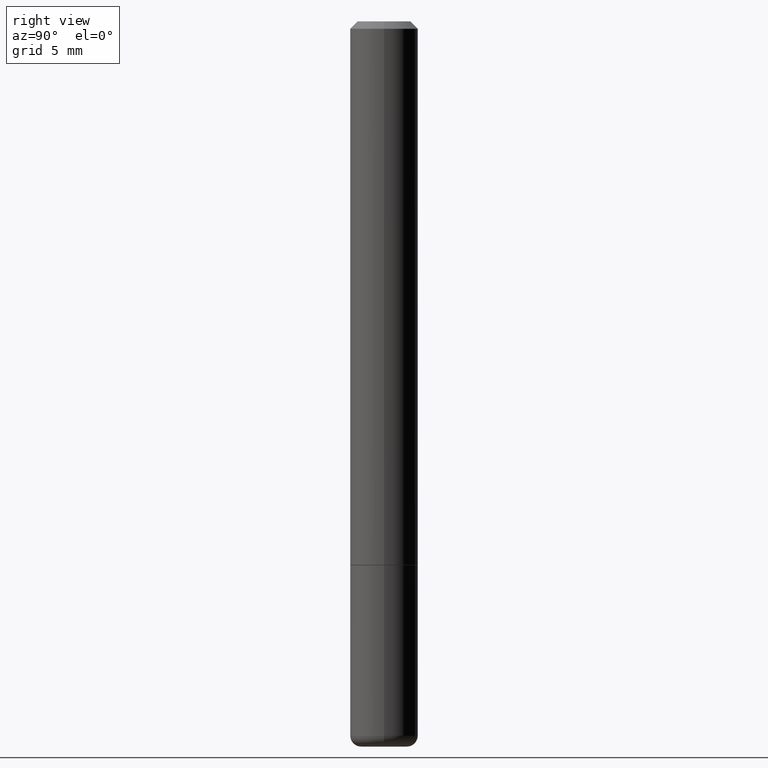
[diagram: clean part render]
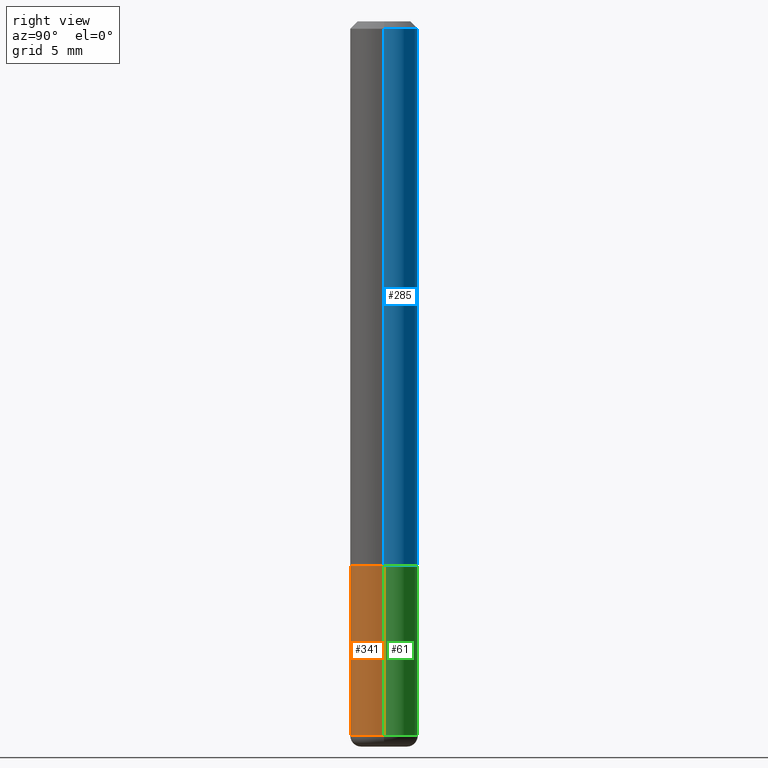
[diagram: same view with three faces highlighted in distinct colors, each labeled with its STEP entity id]
A machine part, right view with three faces highlighted in distinct colors.
Their STEP definitions:

[orange] entity #341 — the highlighted cylindrical surface (edge-blend (fillet) strip) has radius 2.3813 mm, axis along (-0, 0, 1).
#21 = DIRECTION ( 'NONE',  ( 1.000000000000000000, -6.982962677686261189E-15, 0.000000000000000000 ) ) ;
#23 = ORIENTED_EDGE ( 'NONE', *, *, #331, .F. ) ;
#44 = CARTESIAN_POINT ( 'NONE',  ( -0.09375000000000001388, 6.661338147750940229E-16, -4.611501647113973995E-30 ) ) ;
#45 = EDGE_CURVE ( 'NONE', #196, #249, #100, .T. ) ;
#65 = DIRECTION ( 'NONE',  ( -2.445468806185136597E-29, 3.491481338843145583E-15, 1.000000000000000000 ) ) ;
#67 = DIRECTION ( 'NONE',  ( -2.445468806185136597E-29, 3.491481338843145583E-15, 1.000000000000000000 ) ) ;
#69 = EDGE_CURVE ( 'NONE', #338, #249, #292, .T. ) ;
#71 = CIRCLE ( 'NONE', #112, 0.09375000000000001388 ) ;
#100 = CIRCLE ( 'NONE', #203, 0.09375000000000001388 ) ;
#112 = AXIS2_PLACEMENT_3D ( 'NONE', #187, #303, #21 ) ;
#133 = VECTOR ( 'NONE', #176, 39.37007874015748143 ) ;
#152 = CARTESIAN_POINT ( 'NONE',  ( -0.09374999999999991673, -6.212084422745903871E-15, -1.969999999999999973 ) ) ;
#153 = CARTESIAN_POINT ( 'NONE',  ( -0.09375000000000001388, -5.391586308117763273E-15, -1.499999999999999778 ) ) ;
#165 = ORIENTED_EDGE ( 'NONE', *, *, #45, .F. ) ;
#176 = DIRECTION ( 'NONE',  ( -2.445468806185136877E-29, 3.491481338843145188E-15, 1.000000000000000000 ) ) ;
#187 = CARTESIAN_POINT ( 'NONE',  ( 4.817573548184719118E-29, -6.878218237520997007E-15, -1.969999999999999973 ) ) ;
#196 = VERTEX_POINT ( 'NONE', #153 ) ;
#197 = DIRECTION ( 'NONE',  ( 1.000000000000000000, -6.982962677686261189E-15, 0.000000000000000000 ) ) ;
#203 = AXIS2_PLACEMENT_3D ( 'NONE', #352, #65, #197 ) ;
#226 = EDGE_LOOP ( 'NONE', ( #23, #350, #371, #165 ) ) ;
#234 = CARTESIAN_POINT ( 'NONE',  ( 0.000000000000000000, 0.000000000000000000, 0.000000000000000000 ) ) ;
#239 = CARTESIAN_POINT ( 'NONE',  ( 0.09375000000000001388, -5.891874759297804892E-15, -1.499999999999999778 ) ) ;
#249 = VERTEX_POINT ( 'NONE', #239 ) ;
#255 = VERTEX_POINT ( 'NONE', #152 ) ;
#264 = FACE_OUTER_BOUND ( 'NONE', #226, .T. ) ;
#269 = CARTESIAN_POINT ( 'NONE',  ( 0.09375000000000001388, -6.546527510330875041E-16, 4.571415727308690506E-30 ) ) ;
#270 = VECTOR ( 'NONE', #397, 39.37007874015748143 ) ;
#271 = AXIS2_PLACEMENT_3D ( 'NONE', #234, #67, #320 ) ;
#291 = CARTESIAN_POINT ( 'NONE',  ( 0.09374999999999991673, -7.532870988554083722E-15, -1.969999999999999973 ) ) ;
#292 = LINE ( 'NONE', #269, #270 ) ;
#294 = EDGE_CURVE ( 'NONE', #255, #338, #71, .T. ) ;
#303 = DIRECTION ( 'NONE',  ( -2.445468806185136597E-29, 3.491481338843145583E-15, 1.000000000000000000 ) ) ;
#320 = DIRECTION ( 'NONE',  ( 1.000000000000000000, -6.982962677686265922E-15, 4.876176775795935793E-29 ) ) ;
#326 = LINE ( 'NONE', #44, #133 ) ;
#331 = EDGE_CURVE ( 'NONE', #255, #196, #326, .T. ) ;
#338 = VERTEX_POINT ( 'NONE', #291 ) ;
#341 = ADVANCED_FACE ( 'NONE', ( #264 ), #395, .T. ) ;
#350 = ORIENTED_EDGE ( 'NONE', *, *, #294, .T. ) ;
#352 = CARTESIAN_POINT ( 'NONE',  ( 3.668203209277704335E-29, -5.237222008264717388E-15, -1.499999999999999778 ) ) ;
#371 = ORIENTED_EDGE ( 'NONE', *, *, #69, .T. ) ;
#395 = CYLINDRICAL_SURFACE ( 'NONE', #271, 0.09375000000000001388 ) ;
#397 = DIRECTION ( 'NONE',  ( -2.445468806185136877E-29, 3.491481338843145188E-15, 1.000000000000000000 ) ) ;

[blue] entity #285 — the highlighted cylindrical surface (edge-blend (fillet) strip) has radius 2.3813 mm, axis along (-0, 0, 1).
#13 = CIRCLE ( 'NONE', #49, 0.09375000000000020817 ) ;
#24 = VERTEX_POINT ( 'NONE', #102 ) ;
#25 = CARTESIAN_POINT ( 'NONE',  ( 0.09375000000000020817, -5.888383277958964251E-15, -1.498999999999999666 ) ) ;
#49 = AXIS2_PLACEMENT_3D ( 'NONE', #411, #51, #373 ) ;
#51 = DIRECTION ( 'NONE',  ( -2.445468806185136597E-29, 3.491481338843145583E-15, 1.000000000000000000 ) ) ;
#84 = VECTOR ( 'NONE', #332, 39.37007874015748143 ) ;
#90 = DIRECTION ( 'NONE',  ( -2.445468806185136597E-29, 3.491481338843145583E-15, 1.000000000000000000 ) ) ;
#102 = CARTESIAN_POINT ( 'NONE',  ( -0.09375000000000001388, 5.848231242562245017E-16, -0.02000000000000001776 ) ) ;
#106 = CIRCLE ( 'NONE', #355, 0.09375000000000001388 ) ;
#117 = CARTESIAN_POINT ( 'NONE',  ( -0.09375000000000011102, 6.661338147750947131E-16, -4.611501647113979600E-30 ) ) ;
#121 = CYLINDRICAL_SURFACE ( 'NONE', #200, 0.09375000000000011102 ) ;
#158 = EDGE_CURVE ( 'NONE', #409, #24, #248, .T. ) ;
#160 = VECTOR ( 'NONE', #334, 39.37007874015748143 ) ;
#167 = EDGE_CURVE ( 'NONE', #306, #24, #106, .T. ) ;
#171 = EDGE_CURVE ( 'NONE', #218, #409, #13, .T. ) ;
#199 = ORIENTED_EDGE ( 'NONE', *, *, #247, .F. ) ;
#200 = AXIS2_PLACEMENT_3D ( 'NONE', #370, #90, #213 ) ;
#211 = CARTESIAN_POINT ( 'NONE',  ( -0.09375000000000020817, -1.985646262076270971E-15, -1.498999999999999666 ) ) ;
#212 = EDGE_LOOP ( 'NONE', ( #286, #344, #276, #199 ) ) ;
#213 = DIRECTION ( 'NONE',  ( 1.000000000000000000, -6.982962677686265922E-15, 4.876176775795935793E-29 ) ) ;
#218 = VERTEX_POINT ( 'NONE', #25 ) ;
#243 = DIRECTION ( 'NONE',  ( -2.445468806185136597E-29, 3.491481338843145583E-15, 1.000000000000000000 ) ) ;
#247 = EDGE_CURVE ( 'NONE', #218, #306, #340, .T. ) ;
#248 = LINE ( 'NONE', #117, #84 ) ;
#276 = ORIENTED_EDGE ( 'NONE', *, *, #167, .F. ) ;
#281 = DIRECTION ( 'NONE',  ( 1.000000000000000000, -6.982962677686265922E-15, 0.000000000000000000 ) ) ;
#285 = ADVANCED_FACE ( 'NONE', ( #408 ), #121, .T. ) ;
#286 = ORIENTED_EDGE ( 'NONE', *, *, #171, .T. ) ;
#306 = VERTEX_POINT ( 'NONE', #388 ) ;
#332 = DIRECTION ( 'NONE',  ( -2.445468806185136877E-29, 3.491481338843145188E-15, 1.000000000000000000 ) ) ;
#333 = CARTESIAN_POINT ( 'NONE',  ( 4.890937612370276662E-31, -6.982962677686296539E-17, -0.02000000000000001776 ) ) ;
#334 = DIRECTION ( 'NONE',  ( -2.445468806185136877E-29, 3.491481338843145188E-15, 1.000000000000000000 ) ) ;
#340 = LINE ( 'NONE', #378, #160 ) ;
#344 = ORIENTED_EDGE ( 'NONE', *, *, #158, .T. ) ;
#355 = AXIS2_PLACEMENT_3D ( 'NONE', #333, #243, #281 ) ;
#370 = CARTESIAN_POINT ( 'NONE',  ( 0.000000000000000000, 0.000000000000000000, 0.000000000000000000 ) ) ;
#373 = DIRECTION ( 'NONE',  ( 1.000000000000000000, -6.982962677686268288E-15, 0.000000000000000000 ) ) ;
#378 = CARTESIAN_POINT ( 'NONE',  ( 0.09375000000000011102, -6.546527510330881944E-16, 4.571415727308695411E-30 ) ) ;
#388 = CARTESIAN_POINT ( 'NONE',  ( 0.09375000000000001388, -7.130013140679441850E-16, -0.02000000000000001776 ) ) ;
#408 = FACE_OUTER_BOUND ( 'NONE', #212, .T. ) ;
#409 = VERTEX_POINT ( 'NONE', #211 ) ;
#411 = CARTESIAN_POINT ( 'NONE',  ( 3.665757740471518732E-29, -5.233730526925875170E-15, -1.498999999999999666 ) ) ;

[green] entity #61 — the highlighted cylindrical surface (edge-blend (fillet) strip) has radius 2.3813 mm, axis along (-0, 0, 1).
#11 = CARTESIAN_POINT ( 'NONE',  ( 3.668203209277704335E-29, -5.237222008264717388E-15, -1.499999999999999778 ) ) ;
#34 = FACE_OUTER_BOUND ( 'NONE', #130, .T. ) ;
#44 = CARTESIAN_POINT ( 'NONE',  ( -0.09375000000000001388, 6.661338147750940229E-16, -4.611501647113973995E-30 ) ) ;
#54 = DIRECTION ( 'NONE',  ( 1.000000000000000000, -6.982962677686261189E-15, 0.000000000000000000 ) ) ;
#57 = DIRECTION ( 'NONE',  ( -2.445468806185136597E-29, 3.491481338843145583E-15, 1.000000000000000000 ) ) ;
#61 = ADVANCED_FACE ( 'NONE', ( #34 ), #232, .T. ) ;
#62 = CIRCLE ( 'NONE', #116, 0.09375000000000001388 ) ;
#66 = EDGE_CURVE ( 'NONE', #249, #196, #376, .T. ) ;
#69 = EDGE_CURVE ( 'NONE', #338, #249, #292, .T. ) ;
#75 = DIRECTION ( 'NONE',  ( -2.445468806185136597E-29, 3.491481338843145583E-15, 1.000000000000000000 ) ) ;
#92 = AXIS2_PLACEMENT_3D ( 'NONE', #11, #327, #147 ) ;
#116 = AXIS2_PLACEMENT_3D ( 'NONE', #188, #57, #54 ) ;
#130 = EDGE_LOOP ( 'NONE', ( #308, #168, #379, #381 ) ) ;
#133 = VECTOR ( 'NONE', #176, 39.37007874015748143 ) ;
#147 = DIRECTION ( 'NONE',  ( 1.000000000000000000, -6.982962677686261189E-15, 0.000000000000000000 ) ) ;
#152 = CARTESIAN_POINT ( 'NONE',  ( -0.09374999999999991673, -6.212084422745903871E-15, -1.969999999999999973 ) ) ;
#153 = CARTESIAN_POINT ( 'NONE',  ( -0.09375000000000001388, -5.391586308117763273E-15, -1.499999999999999778 ) ) ;
#168 = ORIENTED_EDGE ( 'NONE', *, *, #331, .T. ) ;
#176 = DIRECTION ( 'NONE',  ( -2.445468806185136877E-29, 3.491481338843145188E-15, 1.000000000000000000 ) ) ;
#188 = CARTESIAN_POINT ( 'NONE',  ( 4.817573548184719118E-29, -6.878218237520997007E-15, -1.969999999999999973 ) ) ;
#196 = VERTEX_POINT ( 'NONE', #153 ) ;
#202 = DIRECTION ( 'NONE',  ( 1.000000000000000000, -6.982962677686265922E-15, 4.876176775795935793E-29 ) ) ;
#232 = CYLINDRICAL_SURFACE ( 'NONE', #384, 0.09375000000000001388 ) ;
#239 = CARTESIAN_POINT ( 'NONE',  ( 0.09375000000000001388, -5.891874759297804892E-15, -1.499999999999999778 ) ) ;
#249 = VERTEX_POINT ( 'NONE', #239 ) ;
#255 = VERTEX_POINT ( 'NONE', #152 ) ;
#269 = CARTESIAN_POINT ( 'NONE',  ( 0.09375000000000001388, -6.546527510330875041E-16, 4.571415727308690506E-30 ) ) ;
#270 = VECTOR ( 'NONE', #397, 39.37007874015748143 ) ;
#279 = EDGE_CURVE ( 'NONE', #338, #255, #62, .T. ) ;
#291 = CARTESIAN_POINT ( 'NONE',  ( 0.09374999999999991673, -7.532870988554083722E-15, -1.969999999999999973 ) ) ;
#292 = LINE ( 'NONE', #269, #270 ) ;
#308 = ORIENTED_EDGE ( 'NONE', *, *, #279, .T. ) ;
#326 = LINE ( 'NONE', #44, #133 ) ;
#327 = DIRECTION ( 'NONE',  ( -2.445468806185136597E-29, 3.491481338843145583E-15, 1.000000000000000000 ) ) ;
#331 = EDGE_CURVE ( 'NONE', #255, #196, #326, .T. ) ;
#338 = VERTEX_POINT ( 'NONE', #291 ) ;
#376 = CIRCLE ( 'NONE', #92, 0.09375000000000001388 ) ;
#379 = ORIENTED_EDGE ( 'NONE', *, *, #66, .F. ) ;
#381 = ORIENTED_EDGE ( 'NONE', *, *, #69, .F. ) ;
#384 = AXIS2_PLACEMENT_3D ( 'NONE', #392, #75, #202 ) ;
#392 = CARTESIAN_POINT ( 'NONE',  ( 0.000000000000000000, 0.000000000000000000, 0.000000000000000000 ) ) ;
#397 = DIRECTION ( 'NONE',  ( -2.445468806185136877E-29, 3.491481338843145188E-15, 1.000000000000000000 ) ) ;